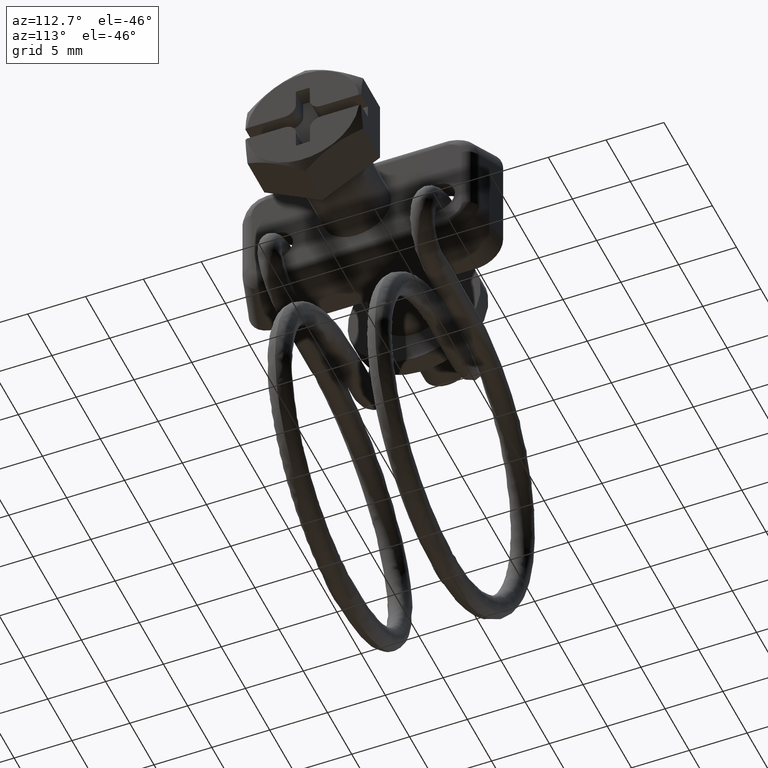
[diagram: clean part render]
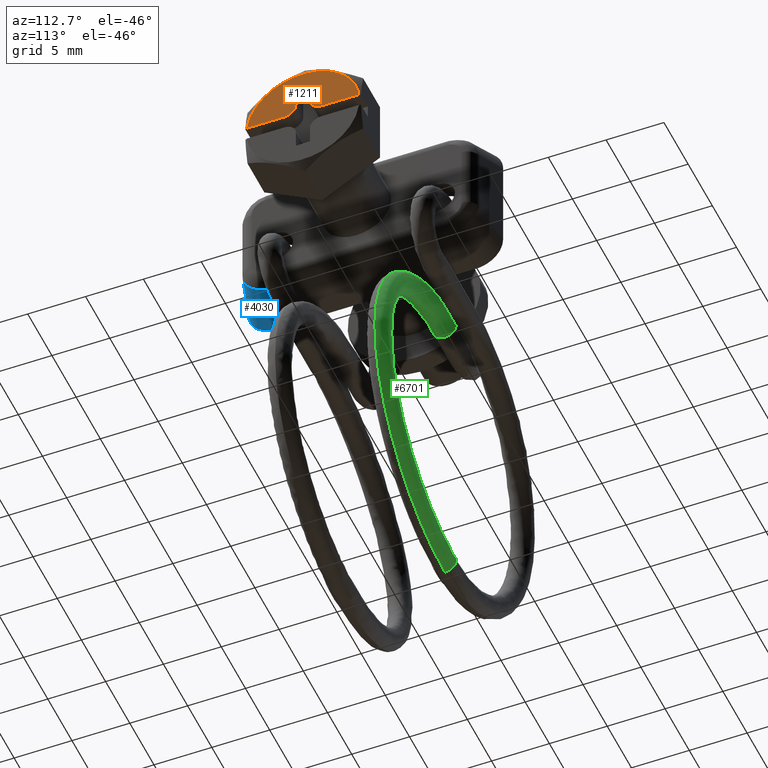
[diagram: same view with three faces highlighted in distinct colors, each labeled with its STEP entity id]
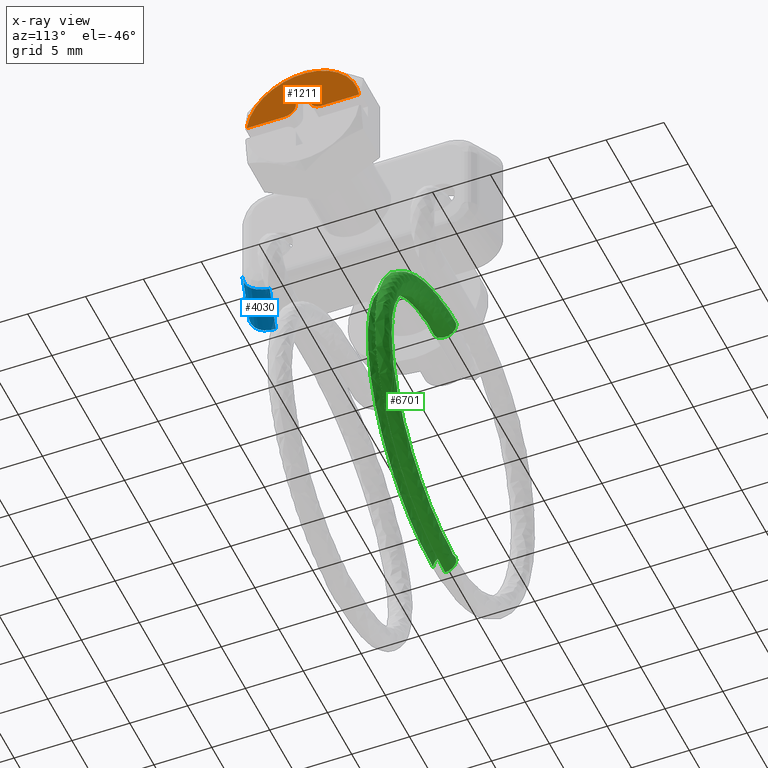
[diagram: x-ray of the same camera — body ghosted, the three highlighted faces saturated]
A machine part, auxiliary view with three faces highlighted in distinct colors.
The next image is the same camera in x-ray (body ghosted, the three faces saturated) — at least one of them is partly hidden behind the body in this view.
Their STEP definitions:

[orange] entity #1211 — the highlighted face is a freeform B-spline surface patch.
#763=CARTESIAN_POINT('',(4.0,0.599999000000025,3.099999000000110));
#764=VERTEX_POINT('',#763);
#765=CARTESIAN_POINT('',(4.0,-0.599998000000198,3.099999000000110));
#766=VERTEX_POINT('',#765);
#767=CARTESIAN_POINT('',(4.0,0.599999000000025,3.099999000000110));
#768=CARTESIAN_POINT('',(4.0,-0.599998000000198,3.099999000000110));
#769=QUASI_UNIFORM_CURVE('',1,(#767,#768),.UNSPECIFIED.,.F.,.U.);
#770=EDGE_CURVE('',#764,#766,#769,.T.);
#791=CARTESIAN_POINT('',(4.0,0.599999000000025,1.600000000000000));
#792=VERTEX_POINT('',#791);
#793=CARTESIAN_POINT('',(4.0,0.599999000000025,1.600000000000000));
#794=CARTESIAN_POINT('',(4.0,0.599999000000025,3.099999000000110));
#795=QUASI_UNIFORM_CURVE('',1,(#793,#794),.UNSPECIFIED.,.F.,.U.);
#796=EDGE_CURVE('',#792,#764,#795,.T.);
#822=CARTESIAN_POINT('',(4.0,1.599999000000025,0.600000000000108));
#823=VERTEX_POINT('',#822);
#824=CARTESIAN_POINT('',(4.0,0.599999000000025,1.600000000000000));
#825=CARTESIAN_POINT('',(4.000000000000000,0.599999000000025,0.600000000000000));
#826=CARTESIAN_POINT('',(4.0,1.599999000000025,0.600000000000108));
#834=(BOUNDED_CURVE()B_SPLINE_CURVE(2,(#824,#825,#826),.UNSPECIFIED.,.F.,.U.)CURVE()GEOMETRIC_REPRESENTATION_ITEM()QUASI_UNIFORM_CURVE()RATIONAL_B_SPLINE_CURVE((1.0,0.707106781186548,1.0))REPRESENTATION_ITEM(''));
#835=EDGE_CURVE('',#792,#823,#834,.T.);
#859=CARTESIAN_POINT('',(4.0,4.863124347857450,0.600000000000108));
#860=VERTEX_POINT('',#859);
#868=CARTESIAN_POINT('',(4.0,4.863124347857450,0.600000000000108));
#869=CARTESIAN_POINT('',(4.0,1.599999000000025,0.600000000000108));
#870=QUASI_UNIFORM_CURVE('',1,(#868,#869),.UNSPECIFIED.,.F.,.U.);
#871=EDGE_CURVE('',#860,#823,#870,.T.);
#1103=CARTESIAN_POINT('',(4.0,-1.599998000000085,0.600000000000000));
#1104=VERTEX_POINT('',#1103);
#1110=CARTESIAN_POINT('',(4.0,-4.863124347857450,0.600000000000108));
#1111=VERTEX_POINT('',#1110);
#1112=CARTESIAN_POINT('',(4.0,-1.599998000000085,0.600000000000000));
#1113=CARTESIAN_POINT('',(4.0,-4.863124347857450,0.600000000000108));
#1114=QUASI_UNIFORM_CURVE('',1,(#1112,#1113),.UNSPECIFIED.,.F.,.U.);
#1115=EDGE_CURVE('',#1104,#1111,#1114,.T.);
#1141=CARTESIAN_POINT('',(4.0,-0.599998000000085,1.600000000000000));
#1142=VERTEX_POINT('',#1141);
#1143=CARTESIAN_POINT('',(4.0,-1.599998000000085,0.600000000000000));
#1144=CARTESIAN_POINT('',(4.000000000000000,-0.599998000000085,0.600000000000000));
#1145=CARTESIAN_POINT('',(4.0,-0.599998000000085,1.600000000000000));
#1153=(BOUNDED_CURVE()B_SPLINE_CURVE(2,(#1143,#1144,#1145),.UNSPECIFIED.,.F.,.U.)CURVE()GEOMETRIC_REPRESENTATION_ITEM()QUASI_UNIFORM_CURVE()RATIONAL_B_SPLINE_CURVE((1.0,0.707106781186548,1.0))REPRESENTATION_ITEM(''));
#1154=EDGE_CURVE('',#1104,#1142,#1153,.T.);
#1171=CARTESIAN_POINT('',(4.0,-0.599998000000198,3.099999000000110));
#1172=CARTESIAN_POINT('',(4.0,-0.599998000000085,1.600000000000000));
#1173=QUASI_UNIFORM_CURVE('',1,(#1171,#1172),.UNSPECIFIED.,.F.,.U.);
#1174=EDGE_CURVE('',#766,#1142,#1173,.T.);
#1182=CARTESIAN_POINT('',(4.0,-5.348950542660116,0.385215133674923));
#1183=CARTESIAN_POINT('',(4.0,5.348950716578997,0.385215133674923));
#1184=CARTESIAN_POINT('',(4.0,-5.348950542660116,5.114782472336833));
#1185=CARTESIAN_POINT('',(4.0,5.348950716578997,5.114782472336833));
#1186=B_SPLINE_SURFACE_WITH_KNOTS('',1,1,((#1182,#1184),(#1183,#1185)),.UNSPECIFIED.,.F.,.F.,.U.,(2,2),(2,2),(0.0,10.697901259239110),(0.0,4.729567338661910),.UNSPECIFIED.);
#1187=ORIENTED_EDGE('',*,*,#1115,.F.);
#1188=ORIENTED_EDGE('',*,*,#1154,.T.);
#1189=ORIENTED_EDGE('',*,*,#1174,.F.);
#1190=ORIENTED_EDGE('',*,*,#770,.F.);
#1191=ORIENTED_EDGE('',*,*,#796,.F.);
#1192=ORIENTED_EDGE('',*,*,#835,.T.);
#1193=ORIENTED_EDGE('',*,*,#871,.F.);
#1194=CARTESIAN_POINT('',(4.0,-4.863124347857444,0.600000000000106));
#1195=CARTESIAN_POINT('',(4.000000000000001,-4.332601479348219,4.899997798236649));
#1196=CARTESIAN_POINT('',(4.0,0.0,4.899997798236650));
#1197=CARTESIAN_POINT('',(4.000000000000001,4.332601479348219,4.899997798236649));
#1198=CARTESIAN_POINT('',(4.0,4.863124347857444,0.600000000000107));
#1206=(BOUNDED_CURVE()B_SPLINE_CURVE(2,(#1194,#1195,#1196,#1197,#1198),.UNSPECIFIED.,.F.,.U.)B_SPLINE_CURVE_WITH_KNOTS((3,2,3),(0.0,0.500000000000000,1.0),.UNSPECIFIED.)CURVE()GEOMETRIC_REPRESENTATION_ITEM()RATIONAL_B_SPLINE_CURVE((1.0,0.749149195625625,1.0,0.749149195625625,1.0))REPRESENTATION_ITEM(''));
#1207=EDGE_CURVE('',#1111,#860,#1206,.T.);
#1208=ORIENTED_EDGE('',*,*,#1207,.F.);
#1209=EDGE_LOOP('',(#1187,#1188,#1189,#1190,#1191,#1192,#1193,#1208));
#1210=FACE_OUTER_BOUND('',#1209,.T.);
#1211=ADVANCED_FACE('',(#1210),#1186,.T.);

[blue] entity #4030 — the highlighted face is a freeform B-spline surface patch.
#3383=CARTESIAN_POINT('',(-35.478652022990900,-7.837173833659261,-5.291995008621610));
#3384=VERTEX_POINT('',#3383);
#3537=CARTESIAN_POINT('',(-35.608957165478301,-10.227239053049701,-2.898235503023220));
#3538=VERTEX_POINT('',#3537);
#3552=CARTESIAN_POINT('',(-35.478652022990900,-7.837173833659261,-5.291995008621610));
#3553=CARTESIAN_POINT('',(-35.243515377670953,-10.135878577922261,-5.203818803123436));
#3554=CARTESIAN_POINT('',(-35.608957165478301,-10.227239053049701,-2.898235503023220));
#3562=(BOUNDED_CURVE()B_SPLINE_CURVE(2,(#3552,#3553,#3554),.UNSPECIFIED.,.F.,.U.)CURVE()GEOMETRIC_REPRESENTATION_ITEM()QUASI_UNIFORM_CURVE()RATIONAL_B_SPLINE_CURVE((1.0,0.736600277350765,1.0))REPRESENTATION_ITEM(''));
#3563=EDGE_CURVE('',#3384,#3538,#3562,.T.);
#3986=CARTESIAN_POINT('',(-35.556199136304123,-10.211816873959600,-2.767537939289877));
#3987=CARTESIAN_POINT('',(-39.245671841367979,-11.134185334684661,-4.151089631029084));
#3988=CARTESIAN_POINT('',(-34.682172386831390,-10.103110592213145,-5.170747809433041));
#3989=CARTESIAN_POINT('',(-38.371645091895239,-11.025479052938207,-6.554299501172247));
#3990=CARTESIAN_POINT('',(-35.287479910551276,-7.616573901134935,-5.214286069486156));
#3991=CARTESIAN_POINT('',(-38.976952615615119,-8.538942361859991,-6.597837761225364));
#3999=(BOUNDED_SURFACE()B_SPLINE_SURFACE(1,2,((#3986,#3988,#3990),(#3987,#3989,#3991)),.UNSPECIFIED.,.F.,.F.,.U.)B_SPLINE_SURFACE_WITH_KNOTS((2,2),(3,3),(0.0,4.046873818451225),(0.0,4.211209450051096),.UNSPECIFIED.)GEOMETRIC_REPRESENTATION_ITEM()RATIONAL_B_SPLINE_SURFACE(((1.0,0.697067545610136,0.995219666950185),(1.0,0.697067545610136,0.995219666950185)))REPRESENTATION_ITEM('')SURFACE());
#4000=CARTESIAN_POINT('',(-38.700000000000003,-8.642511076278339,-6.500000000000000));
#4001=VERTEX_POINT('',#4000);
#4002=CARTESIAN_POINT('',(-35.478652022990900,-7.837173833659261,-5.291995008621610));
#4003=CARTESIAN_POINT('',(-38.700000000000003,-8.642511076278339,-6.500000000000000));
#4004=QUASI_UNIFORM_CURVE('',1,(#4002,#4003),.UNSPECIFIED.,.F.,.U.);
#4005=EDGE_CURVE('',#3384,#4001,#4004,.T.);
#4006=ORIENTED_EDGE('',*,*,#4005,.F.);
#4007=ORIENTED_EDGE('',*,*,#3563,.T.);
#4008=CARTESIAN_POINT('',(-38.700000000000003,-11.0,-4.057376086194156));
#4009=VERTEX_POINT('',#4008);
#4010=CARTESIAN_POINT('',(-38.700000000000003,-11.0,-4.057376086194156));
#4011=CARTESIAN_POINT('',(-35.608957165478301,-10.227239053049701,-2.898235503023220));
#4012=QUASI_UNIFORM_CURVE('',1,(#4010,#4011),.UNSPECIFIED.,.F.,.U.);
#4013=EDGE_CURVE('',#4009,#3538,#4012,.T.);
#4014=ORIENTED_EDGE('',*,*,#4013,.F.);
#4015=CARTESIAN_POINT('',(-38.700000000000003,-8.642511076278327,-6.499999999999980));
#4016=CARTESIAN_POINT('',(-38.699999999999996,-10.999999999999945,-6.499999999999979));
#4017=CARTESIAN_POINT('',(-38.700000000000003,-11.0,-4.057376086194156));
#4025=(BOUNDED_CURVE()B_SPLINE_CURVE(2,(#4015,#4016,#4017),.UNSPECIFIED.,.F.,.U.)CURVE()GEOMETRIC_REPRESENTATION_ITEM()QUASI_UNIFORM_CURVE()RATIONAL_B_SPLINE_CURVE((1.0,0.736600277350831,1.0))REPRESENTATION_ITEM(''));
#4026=EDGE_CURVE('',#4001,#4009,#4025,.T.);
#4027=ORIENTED_EDGE('',*,*,#4026,.F.);
#4028=EDGE_LOOP('',(#4006,#4007,#4014,#4027));
#4029=FACE_OUTER_BOUND('',#4028,.T.);
#4030=ADVANCED_FACE('',(#4029),#3999,.T.);

[green] entity #6701 — the highlighted face is a freeform B-spline surface patch.
#5484=CARTESIAN_POINT('',(-15.049998018476700,5.153540393440082,-8.371030952041055));
#5485=VERTEX_POINT('',#5484);
#5486=CARTESIAN_POINT('',(-15.049998091601889,4.300002000000000,-8.850001000000169));
#5487=VERTEX_POINT('',#5486);
#5488=CARTESIAN_POINT('',(-15.049998018476703,5.153540393440082,-8.371030952041055));
#5489=CARTESIAN_POINT('',(-15.049998091601895,4.861160175937076,-8.850001000000169));
#5490=CARTESIAN_POINT('',(-15.049998091601889,4.300002000000000,-8.850001000000169));
#5498=(BOUNDED_CURVE()B_SPLINE_CURVE(2,(#5488,#5489,#5490),.UNSPECIFIED.,.F.,.U.)B_SPLINE_CURVE_WITH_KNOTS((3,3),(0.339018950955601,0.500000000000000),.UNSPECIFIED.)CURVE()GEOMETRIC_REPRESENTATION_ITEM()RATIONAL_B_SPLINE_CURVE((0.865687472932850,0.811398969509679,1.0))REPRESENTATION_ITEM(''));
#5499=EDGE_CURVE('',#5485,#5487,#5498,.T.);
#5501=CARTESIAN_POINT('',(-15.049997937205760,3.300317788125559,-7.824871803266815));
#5502=VERTEX_POINT('',#5501);
#5503=CARTESIAN_POINT('',(-15.049998091601889,4.300002000000000,-8.850001000000169));
#5504=CARTESIAN_POINT('',(-15.049998091601895,3.300001999999999,-8.850001000000169));
#5505=CARTESIAN_POINT('',(-15.049997938930151,3.300002000000000,-7.850001000000181));
#5506=CARTESIAN_POINT('',(-15.049997937011652,3.300002000000000,-7.837434867012643));
#5507=CARTESIAN_POINT('',(-15.049997937205752,3.300317788125559,-7.824871803266815));
#5515=(BOUNDED_CURVE()B_SPLINE_CURVE(2,(#5503,#5504,#5505,#5506,#5507),.UNSPECIFIED.,.F.,.U.)B_SPLINE_CURVE_WITH_KNOTS((3,2,3),(0.500000000000000,0.750000000000000,0.754419793621425),.UNSPECIFIED.)CURVE()GEOMETRIC_REPRESENTATION_ITEM()RATIONAL_B_SPLINE_CURVE((1.0,0.707106781186548,1.0,0.994821889678918,0.989826868789581))REPRESENTATION_ITEM(''));
#5516=EDGE_CURVE('',#5487,#5502,#5515,.T.);
#5518=CARTESIAN_POINT('',(-15.049997785850650,4.325132095436437,-6.850316810716714));
#5519=VERTEX_POINT('',#5518);
#5530=CARTESIAN_POINT('',(-15.049997830724591,5.006367909958848,-7.142154123021834));
#5531=VERTEX_POINT('',#5530);
#5532=CARTESIAN_POINT('',(-15.049997785850650,4.325132095436438,-6.850316810716714));
#5533=CARTESIAN_POINT('',(-15.049997787567870,4.723965640547025,-6.860342702052525));
#5534=CARTESIAN_POINT('',(-15.049997830724593,5.006367909958848,-7.142154123021834));
#5542=(BOUNDED_CURVE()B_SPLINE_CURVE(2,(#5532,#5533,#5534),.UNSPECIFIED.,.F.,.U.)B_SPLINE_CURVE_WITH_KNOTS((3,3),(0.004420108228985,0.124841988731789),.UNSPECIFIED.)CURVE()GEOMETRIC_REPRESENTATION_ITEM()RATIONAL_B_SPLINE_CURVE((0.989826157684306,0.853731966244938,0.853553624603810))REPRESENTATION_ITEM(''));
#5543=EDGE_CURVE('',#5519,#5531,#5542,.T.);
#5636=CARTESIAN_POINT('',(-15.049997830724593,5.006367909958848,-7.142154123021834));
#5637=CARTESIAN_POINT('',(-15.049997875597768,5.300001999999999,-7.435173865150233));
#5638=CARTESIAN_POINT('',(-15.049997938930151,5.300002000000000,-7.850001000000181));
#5639=CARTESIAN_POINT('',(-15.049997981846204,5.300002000000000,-8.131101167060130));
#5640=CARTESIAN_POINT('',(-15.049998018476700,5.153540393440082,-8.371030952041055));
#5648=(BOUNDED_CURVE()B_SPLINE_CURVE(2,(#5636,#5637,#5638,#5639,#5640),.UNSPECIFIED.,.F.,.U.)B_SPLINE_CURVE_WITH_KNOTS((3,2,3),(0.124841988731789,0.250000000000000,0.339018950955601),.UNSPECIFIED.)CURVE()GEOMETRIC_REPRESENTATION_ITEM()RATIONAL_B_SPLINE_CURVE((0.853553624603810,0.853368268877454,1.0,0.895707811676868,0.865687472932850))REPRESENTATION_ITEM(''));
#5649=EDGE_CURVE('',#5531,#5485,#5648,.T.);
#6573=CARTESIAN_POINT('',(-16.970383319354408,3.300848521747149,-34.759430496468362));
#6574=CARTESIAN_POINT('',(-1.601575074433029,3.300848521747149,-36.960419211139374));
#6575=CARTESIAN_POINT('',(-1.504025421063249,3.300848521747148,-21.435113988490770));
#6576=CARTESIAN_POINT('',(-1.405300438090062,3.300848521747149,-5.722751711308616));
#6577=CARTESIAN_POINT('',(-16.960858406506830,3.300848521747148,-7.939210879194565));
#6578=CARTESIAN_POINT('',(-16.968893430613122,3.300584331940631,-34.749027074488666));
#6579=CARTESIAN_POINT('',(-1.612008750190808,3.300584331940631,-36.948308198663213));
#6580=CARTESIAN_POINT('',(-1.514534778654341,3.300584331940632,-21.435047955380618));
#6581=CARTESIAN_POINT('',(-1.415886389369056,3.300584331940630,-5.734875781819965));
#6582=CARTESIAN_POINT('',(-16.959375907467503,3.300584331940631,-7.949615356785845));
#6583=CARTESIAN_POINT('',(-16.825670140741554,3.275187715273069,-33.748944128324283));
#6584=CARTESIAN_POINT('',(-2.614999997832905,3.275187715273068,-35.784074251233449));
#6585=CARTESIAN_POINT('',(-2.524801335418653,3.275187715273068,-21.428700179861220));
#6586=CARTESIAN_POINT('',(-2.433515912011809,3.275187715273067,-6.900365000671207));
#6587=CARTESIAN_POINT('',(-16.816862991061512,3.275187715273067,-8.949799779094011));
#6588=CARTESIAN_POINT('',(-16.822107572155417,4.274871904556370,-33.724067838366565));
#6589=CARTESIAN_POINT('',(-2.639948629540993,4.274871904556368,-35.755114832051319));
#6590=CARTESIAN_POINT('',(-2.549930934815423,4.274871904556368,-21.428542283853680));
#6591=CARTESIAN_POINT('',(-2.458828659491288,4.274871904556367,-6.929355643759299));
#6592=CARTESIAN_POINT('',(-16.813318092466019,4.274871904556368,-8.974678593192339));
#6593=CARTESIAN_POINT('',(-16.818545003569263,5.274556093839667,-33.699191548408848));
#6594=CARTESIAN_POINT('',(-2.664897261249082,5.274556093839666,-35.726155412869176));
#6595=CARTESIAN_POINT('',(-2.575060534212191,5.274556093839668,-21.428384387846137));
#6596=CARTESIAN_POINT('',(-2.484141406970765,5.274556093839666,-6.958346286847381));
#6597=CARTESIAN_POINT('',(-16.809773193870527,5.274556093839667,-8.999557407290658));
#6598=CARTESIAN_POINT('',(-16.960265256754727,5.299686189283005,-34.688779264652375));
#6599=CARTESIAN_POINT('',(-1.672431764288958,5.299686189283005,-36.878171470766063));
#6600=CARTESIAN_POINT('',(-1.575396077838921,5.299686189283005,-21.434665547527501));
#6601=CARTESIAN_POINT('',(-1.477191254329632,5.299686189283005,-5.805088130798529));
#6602=CARTESIAN_POINT('',(-16.950790528504928,5.299686189283005,-8.009869279830490));
#6603=CARTESIAN_POINT('',(-17.101985509940189,5.324816284726342,-35.678366980895873));
#6604=CARTESIAN_POINT('',(-0.679966267328839,5.324816284726342,-38.030187528662950));
#6605=CARTESIAN_POINT('',(-0.575731621465651,5.324816284726342,-21.440946707208855));
#6606=CARTESIAN_POINT('',(-0.470241101688498,5.324816284726341,-4.651829974749676));
#6607=CARTESIAN_POINT('',(-17.091807863139312,5.324816284726343,-7.020181152370320));
#6608=CARTESIAN_POINT('',(-17.105618092736815,4.305485568631527,-35.703732157947009));
#6609=CARTESIAN_POINT('',(-0.654527326814210,4.305485568631528,-38.059716079588398));
#6610=CARTESIAN_POINT('',(-0.550108156752610,4.305485568631524,-21.441107706304528));
#6611=CARTESIAN_POINT('',(-0.444430889532311,4.305485568631526,-4.622269586283180));
#6612=CARTESIAN_POINT('',(-17.095422428681680,4.305485568631526,-6.994813401572324));
#6613=CARTESIAN_POINT('',(-17.105686976260202,4.286156321329953,-35.704213149809952));
#6614=CARTESIAN_POINT('',(-0.654044936197962,4.286156321329951,-38.060276020198714));
#6615=CARTESIAN_POINT('',(-0.549622267062110,4.286156321329951,-21.441110759279677));
#6616=CARTESIAN_POINT('',(-0.443941458608867,4.286156321329949,-4.621709041947591));
#6617=CARTESIAN_POINT('',(-17.095490970549555,4.286156321329952,-6.994332360904252));
#6625=(BOUNDED_SURFACE()B_SPLINE_SURFACE(2,2,((#6573,#6578,#6583,#6588,#6593,#6598,#6603,#6608,#6613),(#6574,#6579,#6584,#6589,#6594,#6599,#6604,#6609,#6614),(#6575,#6580,#6585,#6590,#6595,#6600,#6605,#6610,#6615),(#6576,#6581,#6586,#6591,#6596,#6601,#6606,#6611,#6616),(#6577,#6582,#6587,#6592,#6597,#6602,#6607,#6612,#6617)),.UNSPECIFIED.,.F.,.F.,.U.)B_SPLINE_SURFACE_WITH_KNOTS((3,2,3),(3,1,2,2,1,3),(0.0,26.369852143573450,52.946722435208002),(0.0,0.024960255537536,1.681814505029919,3.338668754522302,4.995523004014685,5.041950159611646),.UNSPECIFIED.)GEOMETRIC_REPRESENTATION_ITEM()RATIONAL_B_SPLINE_SURFACE(((0.999185357838419,0.994815127207741,0.700350302761251,0.990444896577064,0.700350302761251,0.990444896577064,0.700350302761251,0.998573714696733,1.006702532816401),(0.660066539039526,0.657179544164585,0.462654698482540,0.654292549289643,0.462654698482540,0.654292549289643,0.462654698482540,0.659662484708172,0.665032420126700),(1.008824782975371,1.004412391487685,0.707106781186548,1.0,0.707106781186548,1.0,0.707106781186548,1.008207239138454,1.016414478276907),(0.657328590969604,0.654453571314702,0.460735612354354,0.651578551659800,0.460735612354354,0.651578551659800,0.460735612354354,0.656926212650759,0.662273873641718),(1.004552298946407,1.000158594422483,0.704112106114747,0.995764889898559,0.704112106114747,0.995764889898559,0.704112106114747,1.003937370475632,1.012109851052705)))REPRESENTATION_ITEM('')SURFACE());
#6626=ORIENTED_EDGE('',*,*,#5516,.F.);
#6627=ORIENTED_EDGE('',*,*,#5499,.F.);
#6628=ORIENTED_EDGE('',*,*,#5649,.F.);
#6629=ORIENTED_EDGE('',*,*,#5543,.F.);
#6630=CARTESIAN_POINT('',(-15.049855918518720,4.325131729920833,-35.849677999968627));
#6631=VERTEX_POINT('',#6630);
#6632=CARTESIAN_POINT('',(-15.049855918518720,4.325131729920833,-35.849677999968641));
#6633=CARTESIAN_POINT('',(-0.641134095717129,4.325131729921749,-35.849534822315626));
#6634=CARTESIAN_POINT('',(-0.550602022331372,4.325131911529447,-21.441100986315838));
#6635=CARTESIAN_POINT('',(-0.458924206614450,4.325132095435509,-6.850319039262120));
#6636=CARTESIAN_POINT('',(-15.049997785850653,4.325132095436437,-6.850316810716715));
#6644=(BOUNDED_CURVE()B_SPLINE_CURVE(2,(#6632,#6633,#6634,#6635,#6636),.UNSPECIFIED.,.F.,.U.)B_SPLINE_CURVE_WITH_KNOTS((3,2,3),(-3.792502804856972,-2.0,-0.192000846658483),.UNSPECIFIED.)CURVE()GEOMETRIC_REPRESENTATION_ITEM()RATIONAL_B_SPLINE_CURVE((0.934807975488542,0.685817321691884,1.0,0.683101184089378,0.939155159040090))REPRESENTATION_ITEM(''));
#6645=EDGE_CURVE('',#6631,#5519,#6644,.T.);
#6646=ORIENTED_EDGE('',*,*,#6645,.F.);
#6647=CARTESIAN_POINT('',(-15.050000000001351,5.028950059852400,-35.534537663119181));
#6648=VERTEX_POINT('',#6647);
#6649=CARTESIAN_POINT('',(-15.049855918518720,4.325131729920833,-35.849677999968627));
#6650=CARTESIAN_POINT('',(-15.049899611668790,4.578379368127292,-35.843028160339600));
#6651=CARTESIAN_POINT('',(-15.049950312414101,4.827913548808230,-35.736305558563132));
#6652=CARTESIAN_POINT('',(-15.049996380286650,5.014513643926899,-35.549703103847698));
#6653=CARTESIAN_POINT('',(-15.049998196465820,5.021794742529278,-35.542178046043702));
#6654=CARTESIAN_POINT('',(-15.050000000001351,5.028950059852400,-35.534537663119181));
#6655=B_SPLINE_CURVE_WITH_KNOTS('',3,(#6649,#6650,#6651,#6652,#6653,#6654),.UNSPECIFIED.,.F.,.U.,(4,2,4),(0.004000662428782,0.125000000000000,0.130000035856087),.UNSPECIFIED.);
#6656=EDGE_CURVE('',#6631,#6648,#6655,.T.);
#6657=ORIENTED_EDGE('',*,*,#6656,.T.);
#6658=CARTESIAN_POINT('',(-15.050000000001351,4.300001999999708,-33.850000999999999));
#6659=VERTEX_POINT('',#6658);
#6660=CARTESIAN_POINT('',(-15.050000000001351,5.028950059852400,-35.534537663119181));
#6661=CARTESIAN_POINT('',(-15.050000000001351,5.200678373722480,-35.351169948393427));
#6662=CARTESIAN_POINT('',(-15.050000000001351,5.300001999999711,-35.101328337190367));
#6663=CARTESIAN_POINT('',(-15.050000000001351,5.300001999999711,-34.588201612200848));
#6664=CARTESIAN_POINT('',(-15.050000000001351,5.192228903609520,-34.328014341236702));
#6665=CARTESIAN_POINT('',(-15.050000000001351,4.821988658762990,-33.957774096390153));
#6666=CARTESIAN_POINT('',(-15.050000000001351,4.561801387798860,-33.850000999999999));
#6667=CARTESIAN_POINT('',(-15.050000000001351,4.300001999999708,-33.850000999999999));
#6668=B_SPLINE_CURVE_WITH_KNOTS('',3,(#6660,#6661,#6662,#6663,#6664,#6665,#6666,#6667),.UNSPECIFIED.,.F.,.U.,(4,2,2,4),(0.130000035856087,0.250000000000000,0.375000000000000,0.500000000000000),.UNSPECIFIED.);
#6669=EDGE_CURVE('',#6648,#6659,#6668,.T.);
#6670=ORIENTED_EDGE('',*,*,#6669,.T.);
#6671=CARTESIAN_POINT('',(-15.049999960688110,3.300325003254581,-34.875130907265898));
#6672=VERTEX_POINT('',#6671);
#6673=CARTESIAN_POINT('',(-15.050000000001351,4.300001999999708,-33.850000999999999));
#6674=CARTESIAN_POINT('',(-15.049999994982990,4.038201694071645,-33.850001024100713));
#6675=CARTESIAN_POINT('',(-15.049999987877060,3.778013123046677,-33.957774154617233));
#6676=CARTESIAN_POINT('',(-15.049999973502260,3.407770248270591,-34.328014468498949));
#6677=CARTESIAN_POINT('',(-15.049999966321909,3.299995838206346,-34.588201773946807));
#6678=CARTESIAN_POINT('',(-15.049999961011039,3.299994866560642,-34.858380214190923));
#6679=CARTESIAN_POINT('',(-15.049999960848490,3.300105234585041,-34.866757590533282));
#6680=CARTESIAN_POINT('',(-15.049999960688110,3.300325003254581,-34.875130907265898));
#6681=B_SPLINE_CURVE_WITH_KNOTS('',3,(#6673,#6674,#6675,#6676,#6677,#6678,#6679,#6680),.UNSPECIFIED.,.F.,.U.,(4,2,2,4),(0.500000000000000,0.625000000000000,0.750000000000000,0.754000690667137),.UNSPECIFIED.);
#6682=EDGE_CURVE('',#6659,#6672,#6681,.T.);
#6683=ORIENTED_EDGE('',*,*,#6682,.T.);
#6684=CARTESIAN_POINT('',(-15.049999960688103,3.300325003254581,-34.875130907265891));
#6685=CARTESIAN_POINT('',(-1.609584941567373,3.300325003254303,-34.875130868200273));
#6686=CARTESIAN_POINT('',(-1.525136877996017,3.300321418356648,-21.434981691394359));
#6687=CARTESIAN_POINT('',(-1.439620918700583,3.300317788125842,-7.824873876937192));
#6688=CARTESIAN_POINT('',(-15.049997937205758,3.300317788125559,-7.824871803266815));
#6696=(BOUNDED_CURVE()B_SPLINE_CURVE(2,(#6684,#6685,#6686,#6687,#6688),.UNSPECIFIED.,.F.,.U.)B_SPLINE_CURVE_WITH_KNOTS((3,2,3),(-3.792515017241402,-2.0,-0.192000846195067),.UNSPECIFIED.)CURVE()GEOMETRIC_REPRESENTATION_ITEM()RATIONAL_B_SPLINE_CURVE((0.934811368278784,0.685815181154286,1.0,0.683101184008152,0.939155159171351))REPRESENTATION_ITEM(''));
#6697=EDGE_CURVE('',#6672,#5502,#6696,.T.);
#6698=ORIENTED_EDGE('',*,*,#6697,.T.);
#6699=EDGE_LOOP('',(#6626,#6627,#6628,#6629,#6646,#6657,#6670,#6683,#6698));
#6700=FACE_OUTER_BOUND('',#6699,.T.);
#6701=ADVANCED_FACE('',(#6700),#6625,.T.);